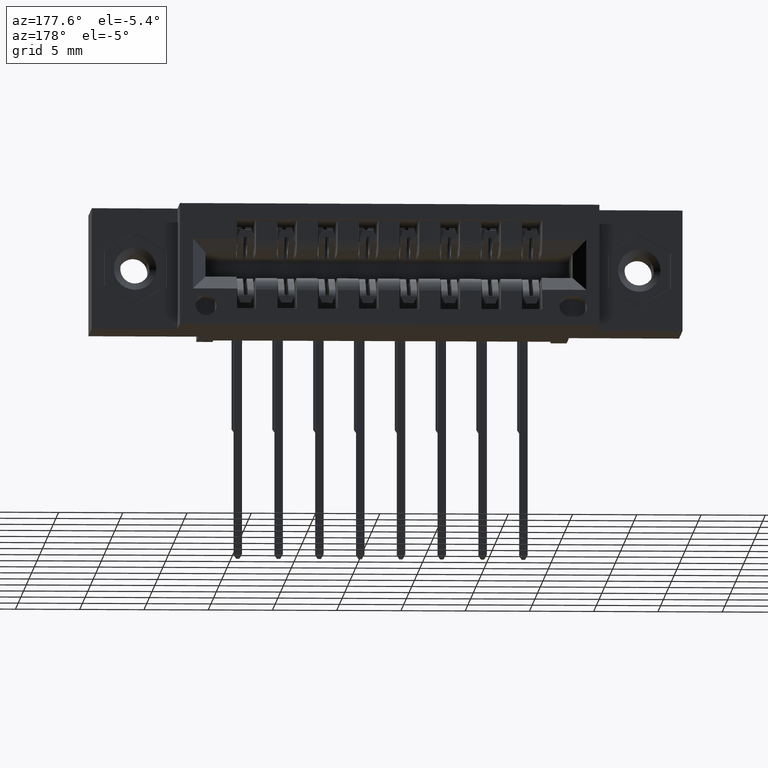
[diagram: clean part render]
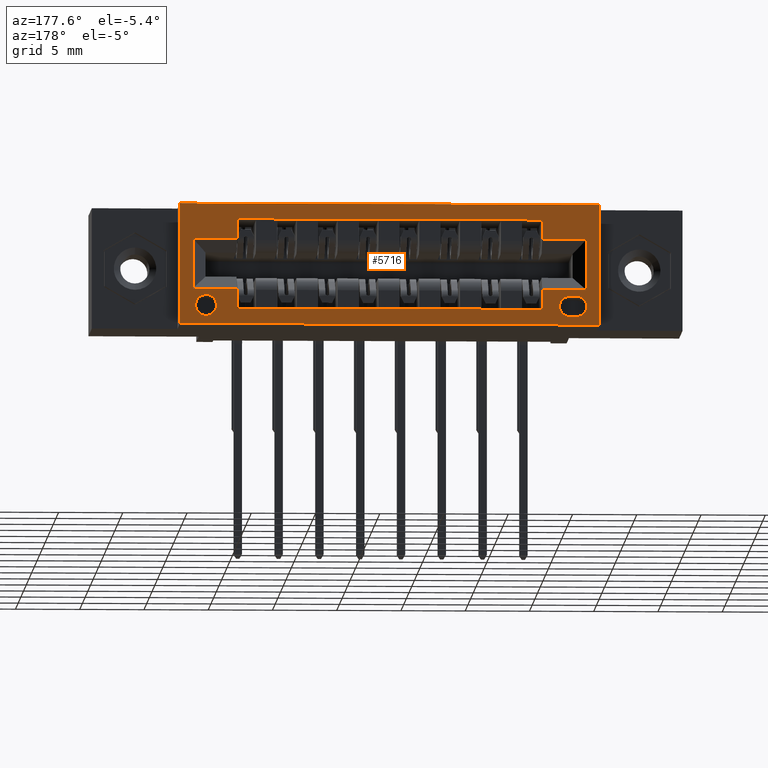
[diagram: same view with one face highlighted and labeled with its STEP entity id]
A machine part, auxiliary view. The second image highlights one B-rep face of the part: STEP entity #5716.
In plain terms, the highlighted planar face has unit normal (0, -1, 0).
Its self-contained STEP definition (entity closure, byte-faithful):
#51 = ORIENTED_EDGE ( 'NONE', *, *, #5237, .F. ) ;
#55 = EDGE_CURVE ( 'NONE', #12277, #5079, #1372, .T. ) ;
#196 = LINE ( 'NONE', #299, #827 ) ;
#197 = CARTESIAN_POINT ( 'NONE',  ( 0.3024999999999999400, 0.5999999999999999800, -0.2620000000000001800 ) ) ;
#252 = CIRCLE ( 'NONE', #8402, 0.03200000000000033400 ) ;
#294 = DIRECTION ( 'NONE',  ( -1.000000000000000000, 0.0000000000000000000, 0.0000000000000000000 ) ) ;
#299 = CARTESIAN_POINT ( 'NONE',  ( 0.0000000000000000000, 0.5999999999999999800, -0.2620000000000001800 ) ) ;
#328 = VERTEX_POINT ( 'NONE', #3785 ) ;
#383 = LINE ( 'NONE', #831, #2409 ) ;
#427 = DIRECTION ( 'NONE',  ( 0.0000000000000000000, -2.483498176058424700E-016, 1.000000000000000000 ) ) ;
#500 = CARTESIAN_POINT ( 'NONE',  ( 0.3315000000000000700, 0.5999999999999999800, -0.3130000000000000600 ) ) ;
#612 = VECTOR ( 'NONE', #7121, 39.37007874015748100 ) ;
#613 = VECTOR ( 'NONE', #3047, 39.37007874015748100 ) ;
#781 = VECTOR ( 'NONE', #2821, 39.37007874015748100 ) ;
#811 = ORIENTED_EDGE ( 'NONE', *, *, #4657, .T. ) ;
#827 = VECTOR ( 'NONE', #9272, 39.37007874015748100 ) ;
#831 = CARTESIAN_POINT ( 'NONE',  ( 0.3024999999999999400, 0.5999999999999999800, -0.3700000000000001600 ) ) ;
#862 = CARTESIAN_POINT ( 'NONE',  ( 1.372499999999999800, 0.5999999999999999800, -0.3224999999999997900 ) ) ;
#1069 = CIRCLE ( 'NONE', #7739, 0.03200000000000033400 ) ;
#1372 = LINE ( 'NONE', #4388, #4370 ) ;
#1399 = DIRECTION ( 'NONE',  ( 0.0000000000000000000, -2.483498176058424700E-016, 1.000000000000000000 ) ) ;
#1521 = VECTOR ( 'NONE', #12546, 39.37007874015748100 ) ;
#1537 = CARTESIAN_POINT ( 'NONE',  ( 0.4375000000000000600, 0.5999999999999999800, -0.3224999999999998400 ) ) ;
#1556 = CARTESIAN_POINT ( 'NONE',  ( 0.0000000000000000000, 0.5999999999999999800, -0.3700000000000001600 ) ) ;
#1776 = DIRECTION ( 'NONE',  ( 1.000000000000000000, -0.0000000000000000000, -0.0000000000000000000 ) ) ;
#1816 = CARTESIAN_POINT ( 'NONE',  ( 0.4375000000000000600, 0.5999999999999998700, -0.04750000000000024300 ) ) ;
#1973 = DIRECTION ( 'NONE',  ( 0.0000000000000000000, 0.0000000000000000000, 1.000000000000000000 ) ) ;
#2119 = AXIS2_PLACEMENT_3D ( 'NONE', #1556, #4687, #8636 ) ;
#2135 = EDGE_CURVE ( 'NONE', #3552, #5238, #7705, .T. ) ;
#2145 = CARTESIAN_POINT ( 'NONE',  ( 1.467500000000000000, 0.5999999999999999800, -0.3130000000000000600 ) ) ;
#2167 = ORIENTED_EDGE ( 'NONE', *, *, #4102, .T. ) ;
#2213 = CARTESIAN_POINT ( 'NONE',  ( 1.467500000000000000, 0.5999999999999999800, -0.2809999999999996900 ) ) ;
#2246 = FACE_BOUND ( 'NONE', #2698, .T. ) ;
#2254 = VECTOR ( 'NONE', #3902, 39.37007874015748100 ) ;
#2325 = ORIENTED_EDGE ( 'NONE', *, *, #12673, .F. ) ;
#2409 = VECTOR ( 'NONE', #11937, 39.37007874015748100 ) ;
#2436 = CARTESIAN_POINT ( 'NONE',  ( 0.0000000000000000000, 0.5999999999999999800, -0.1079999999999999800 ) ) ;
#2461 = DIRECTION ( 'NONE',  ( 0.0000000000000000000, 0.0000000000000000000, 1.000000000000000000 ) ) ;
#2495 = LINE ( 'NONE', #12910, #613 ) ;
#2611 = ORIENTED_EDGE ( 'NONE', *, *, #12335, .T. ) ;
#2698 = EDGE_LOOP ( 'NONE', ( #4277, #8121, #11948, #9084 ) ) ;
#2754 = ORIENTED_EDGE ( 'NONE', *, *, #10638, .T. ) ;
#2774 = CARTESIAN_POINT ( 'NONE',  ( 0.0000000000000000000, 0.5999999999999999800, 0.0000000000000000000 ) ) ;
#2821 = DIRECTION ( 'NONE',  ( 1.000000000000000000, 0.0000000000000000000, 3.104372720073037000E-015 ) ) ;
#2953 = CARTESIAN_POINT ( 'NONE',  ( 0.3315000000000000200, 0.5999999999999999800, -0.2820000000000000800 ) ) ;
#3047 = DIRECTION ( 'NONE',  ( -1.000000000000000000, -0.0000000000000000000, -7.546541418962053100E-017 ) ) ;
#3185 = CARTESIAN_POINT ( 'NONE',  ( 1.547500000000000100, 0.5999999999999999800, 0.0000000000000000000 ) ) ;
#3190 = VECTOR ( 'NONE', #3758, 39.37007874015748100 ) ;
#3211 = ORIENTED_EDGE ( 'NONE', *, *, #10782, .T. ) ;
#3271 = VERTEX_POINT ( 'NONE', #6484 ) ;
#3282 = EDGE_CURVE ( 'NONE', #328, #3271, #6898, .T. ) ;
#3320 = CARTESIAN_POINT ( 'NONE',  ( 0.3315000000000000200, 0.5999999999999999800, -0.3440000000000000800 ) ) ;
#3410 = ORIENTED_EDGE ( 'NONE', *, *, #11579, .F. ) ;
#3456 = EDGE_CURVE ( 'NONE', #6479, #6854, #2495, .T. ) ;
#3476 = VERTEX_POINT ( 'NONE', #11821 ) ;
#3552 = VERTEX_POINT ( 'NONE', #7794 ) ;
#3559 = CARTESIAN_POINT ( 'NONE',  ( 1.547500000000000100, 0.5999999999999999800, -0.3699999999999998800 ) ) ;
#3585 = DIRECTION ( 'NONE',  ( 0.0000000000000000000, 1.000000000000000000, 0.0000000000000000000 ) ) ;
#3617 = LINE ( 'NONE', #8805, #8731 ) ;
#3652 = CARTESIAN_POINT ( 'NONE',  ( 1.372499999999999800, 0.5999999999999998700, -0.1079999999999999800 ) ) ;
#3737 = LINE ( 'NONE', #862, #1521 ) ;
#3758 = DIRECTION ( 'NONE',  ( 1.000000000000000000, 0.0000000000000000000, 0.0000000000000000000 ) ) ;
#3785 = CARTESIAN_POINT ( 'NONE',  ( 0.3315000000000000200, 0.5999999999999999800, -0.3440000000000000800 ) ) ;
#3902 = DIRECTION ( 'NONE',  ( 1.000000000000000000, -0.0000000000000000000, -0.0000000000000000000 ) ) ;
#3961 = LINE ( 'NONE', #4506, #8751 ) ;
#4102 = EDGE_CURVE ( 'NONE', #5238, #4623, #383, .T. ) ;
#4151 = CARTESIAN_POINT ( 'NONE',  ( 1.372499999999999800, 0.5999999999999999800, -0.3224999999999997900 ) ) ;
#4190 = DIRECTION ( 'NONE',  ( 0.0000000000000000000, 1.000000000000000000, 0.0000000000000000000 ) ) ;
#4277 = ORIENTED_EDGE ( 'NONE', *, *, #11433, .F. ) ;
#4370 = VECTOR ( 'NONE', #427, 39.37007874015748100 ) ;
#4388 = CARTESIAN_POINT ( 'NONE',  ( 0.4375000000000000600, 0.5999999999999999800, -0.3224999999999998400 ) ) ;
#4391 = EDGE_CURVE ( 'NONE', #9087, #10499, #11888, .T. ) ;
#4448 = CARTESIAN_POINT ( 'NONE',  ( 1.372499999999999800, 0.5999999999999999800, -0.3224999999999997900 ) ) ;
#4506 = CARTESIAN_POINT ( 'NONE',  ( 0.2625000000000000100, 0.5999999999999999800, 0.0000000000000000000 ) ) ;
#4605 = ORIENTED_EDGE ( 'NONE', *, *, #5536, .F. ) ;
#4623 = VERTEX_POINT ( 'NONE', #197 ) ;
#4657 = EDGE_CURVE ( 'NONE', #9725, #9087, #196, .T. ) ;
#4687 = DIRECTION ( 'NONE',  ( 0.0000000000000000000, -1.000000000000000000, 0.0000000000000000000 ) ) ;
#5079 = VERTEX_POINT ( 'NONE', #6657 ) ;
#5081 = VECTOR ( 'NONE', #12155, 39.37007874015748100 ) ;
#5237 = EDGE_CURVE ( 'NONE', #6252, #7354, #3617, .T. ) ;
#5238 = VERTEX_POINT ( 'NONE', #9729 ) ;
#5246 = DIRECTION ( 'NONE',  ( 0.0000000000000000000, -2.483498176058424700E-016, 1.000000000000000000 ) ) ;
#5281 = VECTOR ( 'NONE', #294, 39.37007874015748100 ) ;
#5379 = VERTEX_POINT ( 'NONE', #4151 ) ;
#5390 = AXIS2_PLACEMENT_3D ( 'NONE', #500, #3585, #2461 ) ;
#5399 = ORIENTED_EDGE ( 'NONE', *, *, #2135, .T. ) ;
#5536 = EDGE_CURVE ( 'NONE', #12298, #6854, #3961, .T. ) ;
#5680 = LINE ( 'NONE', #10291, #9402 ) ;
#5700 = AXIS2_PLACEMENT_3D ( 'NONE', #9359, #7461, #7288 ) ;
#5716 = ADVANCED_FACE ( 'NONE', ( #9406, #2246, #9882, #5844 ), #6699, .F. ) ;
#5844 = FACE_BOUND ( 'NONE', #11338, .T. ) ;
#5871 = ORIENTED_EDGE ( 'NONE', *, *, #4391, .T. ) ;
#5987 = LINE ( 'NONE', #2774, #3190 ) ;
#6149 = DIRECTION ( 'NONE',  ( 0.0000000000000000000, 0.0000000000000000000, 1.000000000000000000 ) ) ;
#6252 = VERTEX_POINT ( 'NONE', #1816 ) ;
#6319 = EDGE_CURVE ( 'NONE', #8371, #328, #8300, .T. ) ;
#6479 = VERTEX_POINT ( 'NONE', #3559 ) ;
#6484 = CARTESIAN_POINT ( 'NONE',  ( 0.3315000000000000200, 0.5999999999999999800, -0.2820000000000000800 ) ) ;
#6657 = CARTESIAN_POINT ( 'NONE',  ( 0.4375000000000000600, 0.5999999999999999800, -0.2620000000000001800 ) ) ;
#6699 = PLANE ( 'NONE',  #2119 ) ;
#6854 = VERTEX_POINT ( 'NONE', #7171 ) ;
#6898 = CIRCLE ( 'NONE', #5390, 0.03099999999999998900 ) ;
#6962 = VERTEX_POINT ( 'NONE', #10515 ) ;
#7121 = DIRECTION ( 'NONE',  ( -0.0000000000000000000, -0.0000000000000000000, 1.000000000000000000 ) ) ;
#7171 = CARTESIAN_POINT ( 'NONE',  ( 0.2625000000000000100, 0.5999999999999999800, -0.3700000000000001600 ) ) ;
#7288 = DIRECTION ( 'NONE',  ( 0.0000000000000000000, 0.0000000000000000000, 1.000000000000000000 ) ) ;
#7354 = VERTEX_POINT ( 'NONE', #8307 ) ;
#7461 = DIRECTION ( 'NONE',  ( 0.0000000000000000000, 1.000000000000000000, 0.0000000000000000000 ) ) ;
#7534 = DIRECTION ( 'NONE',  ( 1.000000000000000000, 0.0000000000000000000, 0.0000000000000000000 ) ) ;
#7576 = DIRECTION ( 'NONE',  ( 0.0000000000000000000, 0.0000000000000000000, -1.000000000000000000 ) ) ;
#7705 = LINE ( 'NONE', #12111, #5081 ) ;
#7739 = AXIS2_PLACEMENT_3D ( 'NONE', #10562, #9675, #10643 ) ;
#7749 = VERTEX_POINT ( 'NONE', #2213 ) ;
#7794 = CARTESIAN_POINT ( 'NONE',  ( 0.4375000000000000600, 0.5999999999999998700, -0.1079999999999999800 ) ) ;
#7803 = EDGE_CURVE ( 'NONE', #3552, #6252, #5680, .T. ) ;
#8121 = ORIENTED_EDGE ( 'NONE', *, *, #3282, .F. ) ;
#8300 = LINE ( 'NONE', #3320, #9218 ) ;
#8307 = CARTESIAN_POINT ( 'NONE',  ( 1.372499999999999800, 0.5999999999999998700, -0.04750000000000017400 ) ) ;
#8371 = VERTEX_POINT ( 'NONE', #9229 ) ;
#8379 = LINE ( 'NONE', #2436, #5281 ) ;
#8402 = AXIS2_PLACEMENT_3D ( 'NONE', #2145, #4190, #6149 ) ;
#8444 = ORIENTED_EDGE ( 'NONE', *, *, #55, .F. ) ;
#8561 = CARTESIAN_POINT ( 'NONE',  ( 0.2625000000000000100, 0.5999999999999999800, 0.0000000000000000000 ) ) ;
#8631 = CARTESIAN_POINT ( 'NONE',  ( 0.0000000000000000000, 0.5999999999999999800, -0.2620000000000001800 ) ) ;
#8636 = DIRECTION ( 'NONE',  ( 0.0000000000000000000, -0.0000000000000000000, -1.000000000000000000 ) ) ;
#8670 = CARTESIAN_POINT ( 'NONE',  ( 0.4375000000000000600, 0.5999999999999999800, -0.3224999999999998400 ) ) ;
#8731 = VECTOR ( 'NONE', #1776, 39.37007874015748100 ) ;
#8751 = VECTOR ( 'NONE', #7576, 39.37007874015748100 ) ;
#8805 = CARTESIAN_POINT ( 'NONE',  ( 0.4375000000000000600, 0.5999999999999998700, -0.04750000000000024300 ) ) ;
#8936 = CARTESIAN_POINT ( 'NONE',  ( 1.507500000000000300, 0.5999999999999999800, -0.1079999999999999800 ) ) ;
#9084 = ORIENTED_EDGE ( 'NONE', *, *, #11288, .F. ) ;
#9087 = VERTEX_POINT ( 'NONE', #10448 ) ;
#9101 = ORIENTED_EDGE ( 'NONE', *, *, #3456, .T. ) ;
#9218 = VECTOR ( 'NONE', #10246, 39.37007874015748100 ) ;
#9229 = CARTESIAN_POINT ( 'NONE',  ( 0.3534999999999999300, 0.5999999999999999800, -0.3440000000000001900 ) ) ;
#9272 = DIRECTION ( 'NONE',  ( 1.000000000000000000, 0.0000000000000000000, 0.0000000000000000000 ) ) ;
#9341 = ORIENTED_EDGE ( 'NONE', *, *, #10802, .T. ) ;
#9359 = CARTESIAN_POINT ( 'NONE',  ( 0.3534999999999999300, 0.5999999999999999800, -0.3130000000000000600 ) ) ;
#9402 = VECTOR ( 'NONE', #5246, 39.37007874015748100 ) ;
#9406 = FACE_BOUND ( 'NONE', #11692, .T. ) ;
#9452 = ORIENTED_EDGE ( 'NONE', *, *, #7803, .F. ) ;
#9675 = DIRECTION ( 'NONE',  ( 0.0000000000000000000, 1.000000000000000000, 0.0000000000000000000 ) ) ;
#9725 = VERTEX_POINT ( 'NONE', #10701 ) ;
#9729 = CARTESIAN_POINT ( 'NONE',  ( 0.3024999999999999400, 0.5999999999999999800, -0.1079999999999999800 ) ) ;
#9882 = FACE_OUTER_BOUND ( 'NONE', #10516, .T. ) ;
#10096 = VECTOR ( 'NONE', #1399, 39.37007874015748100 ) ;
#10168 = CARTESIAN_POINT ( 'NONE',  ( 1.547500000000000100, 0.5999999999999999800, 0.0000000000000000000 ) ) ;
#10228 = VERTEX_POINT ( 'NONE', #3652 ) ;
#10246 = DIRECTION ( 'NONE',  ( -1.000000000000000000, -0.0000000000000000000, 6.208745440146074000E-015 ) ) ;
#10262 = ORIENTED_EDGE ( 'NONE', *, *, #12466, .F. ) ;
#10291 = CARTESIAN_POINT ( 'NONE',  ( 0.4375000000000000600, 0.5999999999999999800, -0.3224999999999998400 ) ) ;
#10296 = CIRCLE ( 'NONE', #5700, 0.03100000000000009300 ) ;
#10448 = CARTESIAN_POINT ( 'NONE',  ( 1.507500000000000300, 0.5999999999999999800, -0.2620000000000001800 ) ) ;
#10499 = VERTEX_POINT ( 'NONE', #8936 ) ;
#10515 = CARTESIAN_POINT ( 'NONE',  ( 1.467500000000000000, 0.5999999999999999800, -0.3450000000000004200 ) ) ;
#10516 = EDGE_LOOP ( 'NONE', ( #9341, #3410, #9101, #4605 ) ) ;
#10562 = CARTESIAN_POINT ( 'NONE',  ( 1.467500000000000000, 0.5999999999999999800, -0.3130000000000000600 ) ) ;
#10638 = EDGE_CURVE ( 'NONE', #4623, #5079, #12117, .T. ) ;
#10643 = DIRECTION ( 'NONE',  ( 0.0000000000000000000, 0.0000000000000000000, 1.000000000000000000 ) ) ;
#10671 = ORIENTED_EDGE ( 'NONE', *, *, #12722, .T. ) ;
#10701 = CARTESIAN_POINT ( 'NONE',  ( 1.372499999999999800, 0.5999999999999999800, -0.2620000000000001800 ) ) ;
#10782 = EDGE_CURVE ( 'NONE', #12277, #5379, #11428, .T. ) ;
#10802 = EDGE_CURVE ( 'NONE', #12298, #11670, #5987, .T. ) ;
#10905 = LINE ( 'NONE', #3185, #612 ) ;
#11105 = VECTOR ( 'NONE', #1973, 39.37007874015748100 ) ;
#11288 = EDGE_CURVE ( 'NONE', #3476, #8371, #10296, .T. ) ;
#11338 = EDGE_LOOP ( 'NONE', ( #9452, #5399, #2167, #2754, #8444, #3211, #11898, #811, #5871, #10671, #2611, #51 ) ) ;
#11428 = LINE ( 'NONE', #8670, #2254 ) ;
#11433 = EDGE_CURVE ( 'NONE', #3271, #3476, #12475, .T. ) ;
#11579 = EDGE_CURVE ( 'NONE', #6479, #11670, #10905, .T. ) ;
#11615 = VECTOR ( 'NONE', #7534, 39.37007874015748100 ) ;
#11631 = LINE ( 'NONE', #4448, #10096 ) ;
#11670 = VERTEX_POINT ( 'NONE', #10168 ) ;
#11692 = EDGE_LOOP ( 'NONE', ( #2325, #10262 ) ) ;
#11821 = CARTESIAN_POINT ( 'NONE',  ( 0.3534999999999999300, 0.5999999999999999800, -0.2819999999999999700 ) ) ;
#11888 = LINE ( 'NONE', #12892, #11105 ) ;
#11898 = ORIENTED_EDGE ( 'NONE', *, *, #12383, .T. ) ;
#11937 = DIRECTION ( 'NONE',  ( 0.0000000000000000000, 0.0000000000000000000, -1.000000000000000000 ) ) ;
#11948 = ORIENTED_EDGE ( 'NONE', *, *, #6319, .F. ) ;
#12111 = CARTESIAN_POINT ( 'NONE',  ( 0.0000000000000000000, 0.5999999999999999800, -0.1079999999999999800 ) ) ;
#12117 = LINE ( 'NONE', #8631, #11615 ) ;
#12155 = DIRECTION ( 'NONE',  ( -1.000000000000000000, 0.0000000000000000000, 0.0000000000000000000 ) ) ;
#12277 = VERTEX_POINT ( 'NONE', #1537 ) ;
#12298 = VERTEX_POINT ( 'NONE', #8561 ) ;
#12335 = EDGE_CURVE ( 'NONE', #10228, #7354, #11631, .T. ) ;
#12383 = EDGE_CURVE ( 'NONE', #5379, #9725, #3737, .T. ) ;
#12466 = EDGE_CURVE ( 'NONE', #6962, #7749, #1069, .T. ) ;
#12475 = LINE ( 'NONE', #2953, #781 ) ;
#12546 = DIRECTION ( 'NONE',  ( 0.0000000000000000000, -2.483498176058424700E-016, 1.000000000000000000 ) ) ;
#12673 = EDGE_CURVE ( 'NONE', #7749, #6962, #252, .T. ) ;
#12722 = EDGE_CURVE ( 'NONE', #10499, #10228, #8379, .T. ) ;
#12892 = CARTESIAN_POINT ( 'NONE',  ( 1.507500000000000300, 0.5999999999999999800, -0.3700000000000001600 ) ) ;
#12910 = CARTESIAN_POINT ( 'NONE',  ( 0.0000000000000000000, 0.5999999999999999800, -0.3700000000000001600 ) ) ;